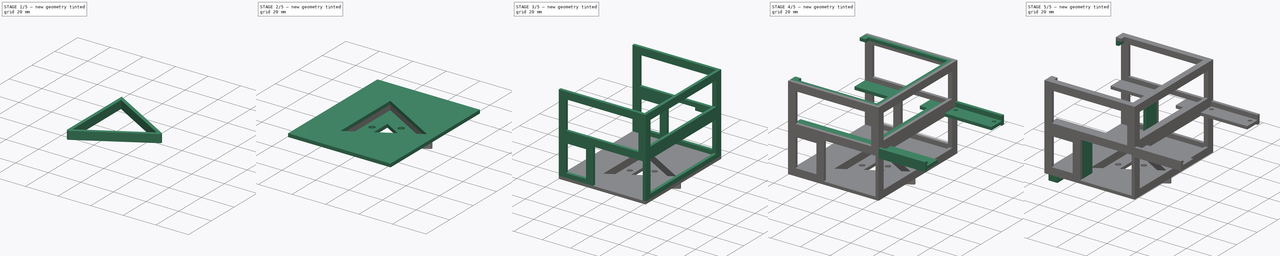
[diagram: build sequence overview — one tinted view per stage of 5, left to right]
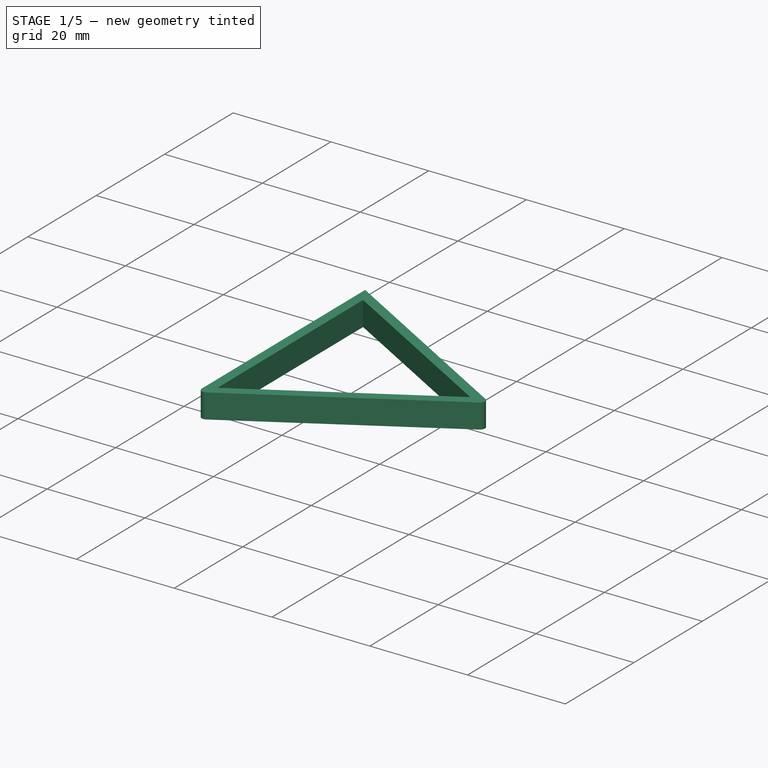
[diagram: stage 1 of 5 — iso view after this stage's code; geometry added in this stage tinted green]
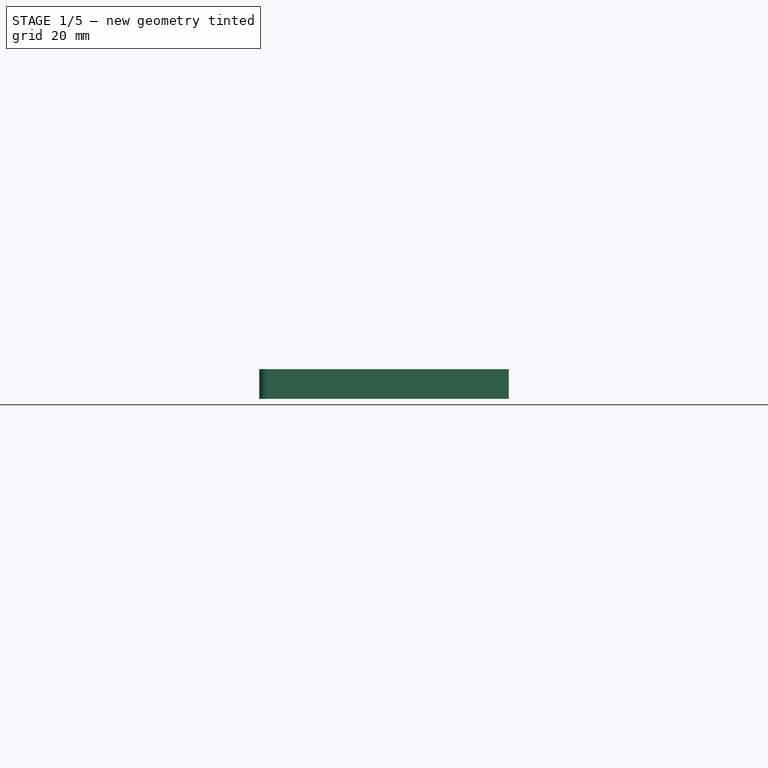
[diagram: stage 1 of 5 — front view after this stage's code; geometry added in this stage tinted green]
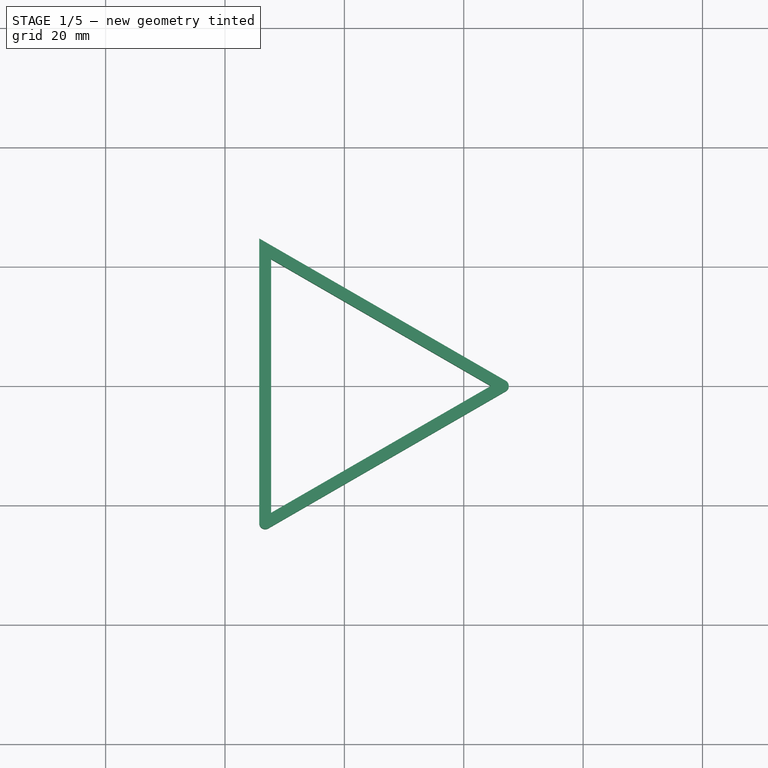
[diagram: stage 1 of 5 — top view after this stage's code; geometry added in this stage tinted green]
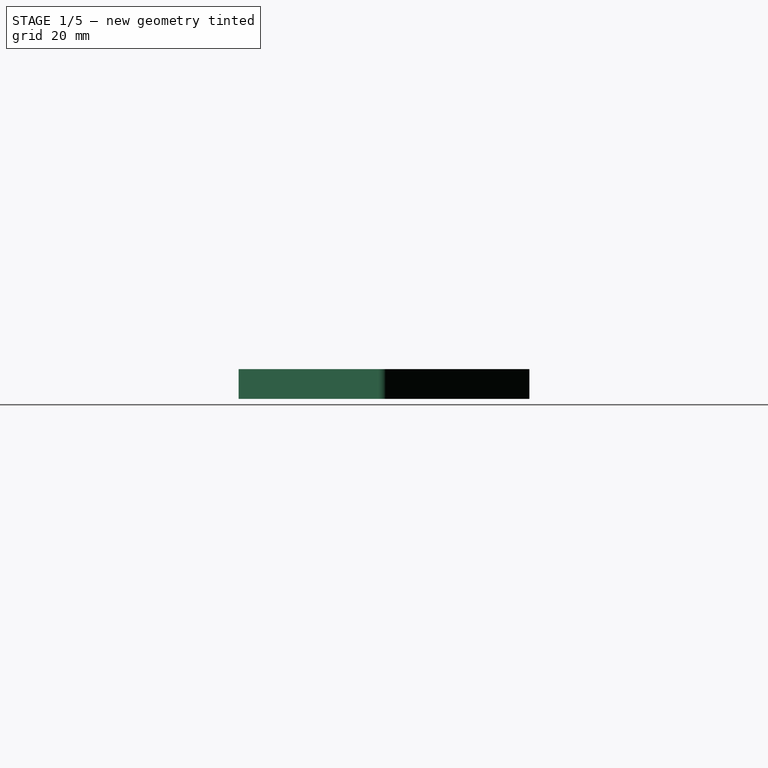
[diagram: stage 1 of 5 — right view after this stage's code; geometry added in this stage tinted green]
FCSTD DOCUMENT  (FreeCAD 0.20R)
Label: core2_9axis
License: All rights reserved
LicenseURL: http://en.wikipedia.org/wiki/All_rights_reserved
objects: Sketcher::SketchObject×13, PartDesign::Pad×10, PartDesign::Fillet×3, PartDesign::Pocket×3, PartDesign::Body×1
note: 46 computed .brp shape members not serialized (recipe doc carries the construction recipe); baked Part::Feature solids carry a one-line shape summary decoded from their .brp

FEATURE [Sketcher::SketchObject] Sketch
  FullyConstrained = true
  MapMode = 5
  Support = -> [XY_Plane]
  sketch-geometry (8):
    g0: LineSegment StartX=24.5374 StartY=0 StartZ=0 EndX=-12.2687 EndY=21.25 EndZ=0
    g1: LineSegment StartX=-12.2687 StartY=21.25 StartZ=0 EndX=-12.2687 EndY=-21.25 EndZ=0
    g2: LineSegment StartX=-12.2687 StartY=-21.25 StartZ=0 EndX=24.5374 EndY=0 EndZ=0
    g3: Circle CenterX=0 CenterY=0 CenterZ=0 NormalX=0 NormalY=0 NormalZ=1 AngleXU=0 Radius=24.5374
    g4: LineSegment StartX=28.5374 StartY=0 StartZ=0 EndX=-14.2687 EndY=24.7141 EndZ=0
    g5: LineSegment StartX=-14.2687 StartY=24.7141 StartZ=0 EndX=-14.2687 EndY=-24.7141 EndZ=0
    g6: LineSegment StartX=-14.2687 StartY=-24.7141 StartZ=0 EndX=28.5374 EndY=0 EndZ=0
    g7: Circle CenterX=0 CenterY=0 CenterZ=0 NormalX=0 NormalY=0 NormalZ=1 AngleXU=0 Radius=28.5374
  constraints (22):
    c: Coincident(g0,g1)
    c: Coincident(g1,g2)
    c: Coincident(g2,g0)
    c: Equal(g0,g1)
    c: Equal(g0,g2)
    c: PointOnObject(g0,g3)
    c: PointOnObject(g1,g3)
    c: PointOnObject(g2,g3)
    c: Coincident(g3,g-1)
    c: PointOnObject(g2,g-1)
    c: Distance(g1) = 42.5
    c: Coincident(g4,g5)
    c: Coincident(g5,g6)
    c: Coincident(g6,g4)
    c: Equal(g4,g5)
    c: Equal(g4,g6)
    c: PointOnObject(g4,g7)
    c: PointOnObject(g5,g7)
    c: PointOnObject(g6,g7)
    c: Coincident(g7,g3)
    c: PointOnObject(g6,g-1)
    c: Distance(g0,g4) = 2
FEATURE [PartDesign::Pad] Pad
  Direction = (0,0,1)
  Length = 5
  Length2 = 10
  Profile = -> Sketch
  ReferenceAxis = -> Sketch [N_Axis]
  Type = 0
FEATURE [PartDesign::Fillet] Fillet
  Base = -> Pad [Edge5]
  BaseFeature = -> Pad
  Radius = 1
  SupportTransform = false
  UseAllEdges = false
FEATURE [PartDesign::Fillet] Fillet001
  Base = -> Fillet [Edge13]
  BaseFeature = -> Fillet
  Radius = 1
  SupportTransform = false
  UseAllEdges = false
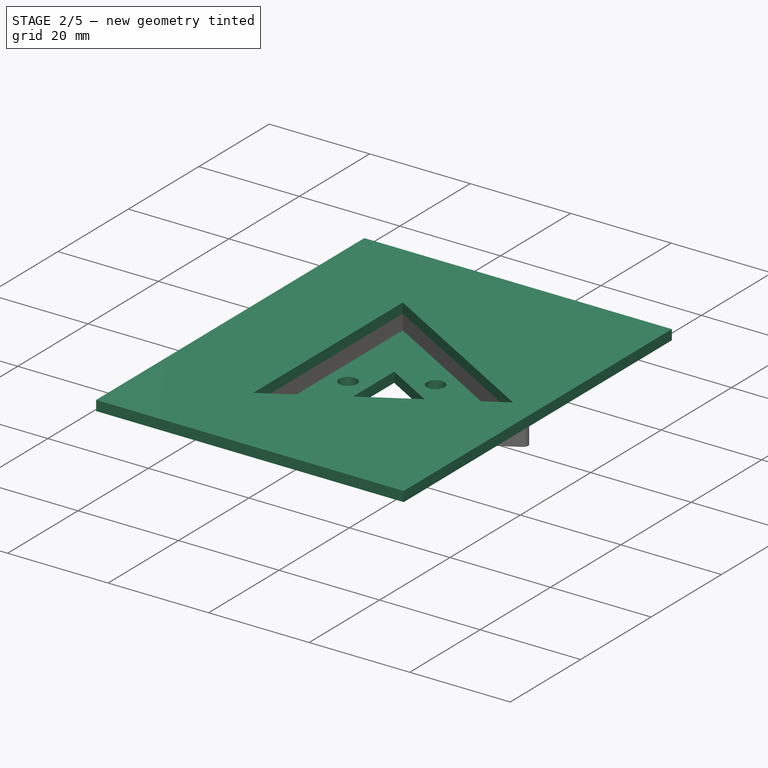
[diagram: stage 2 of 5 — iso view after this stage's code; geometry added in this stage tinted green]
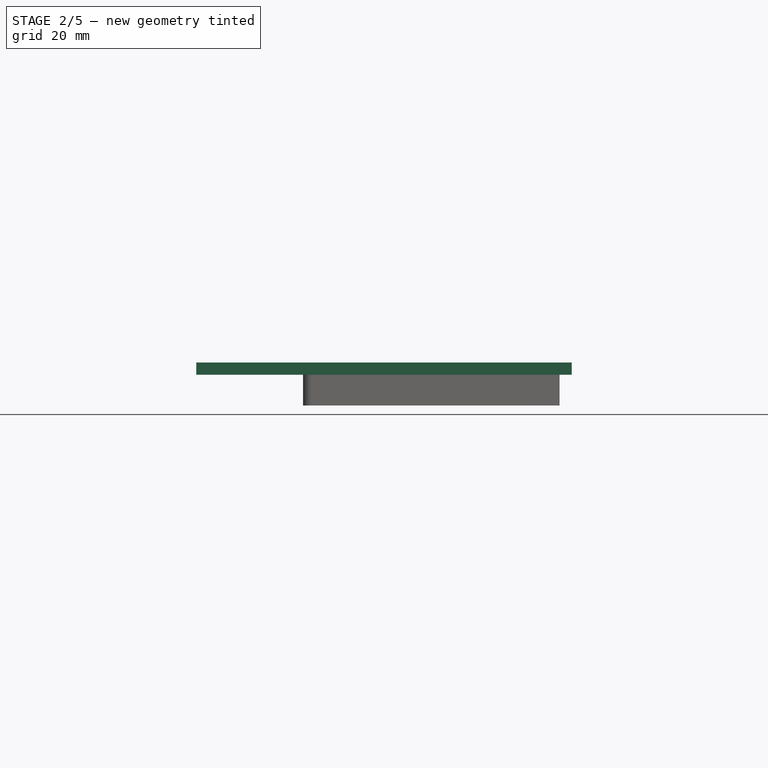
[diagram: stage 2 of 5 — front view after this stage's code; geometry added in this stage tinted green]
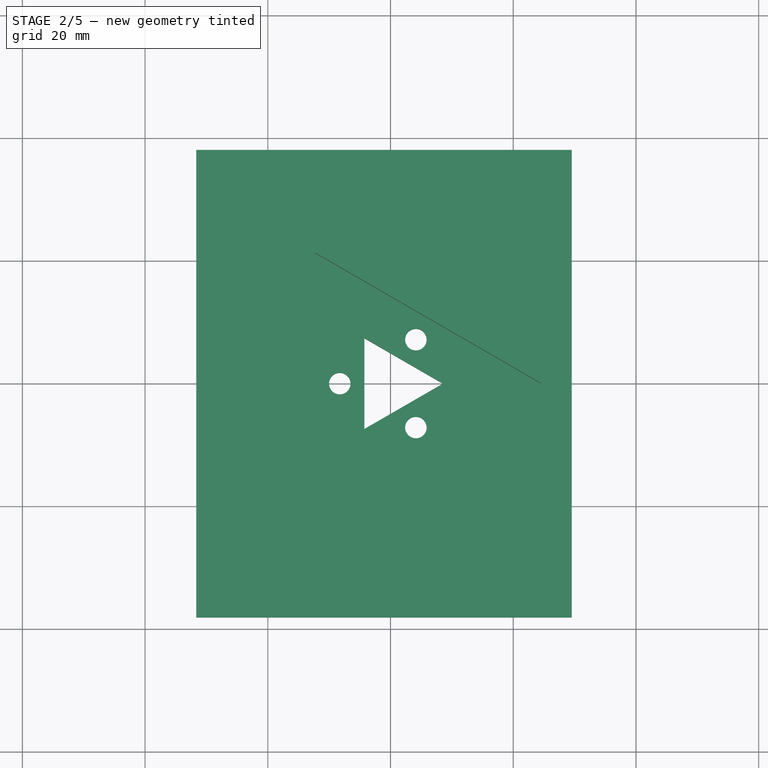
[diagram: stage 2 of 5 — top view after this stage's code; geometry added in this stage tinted green]
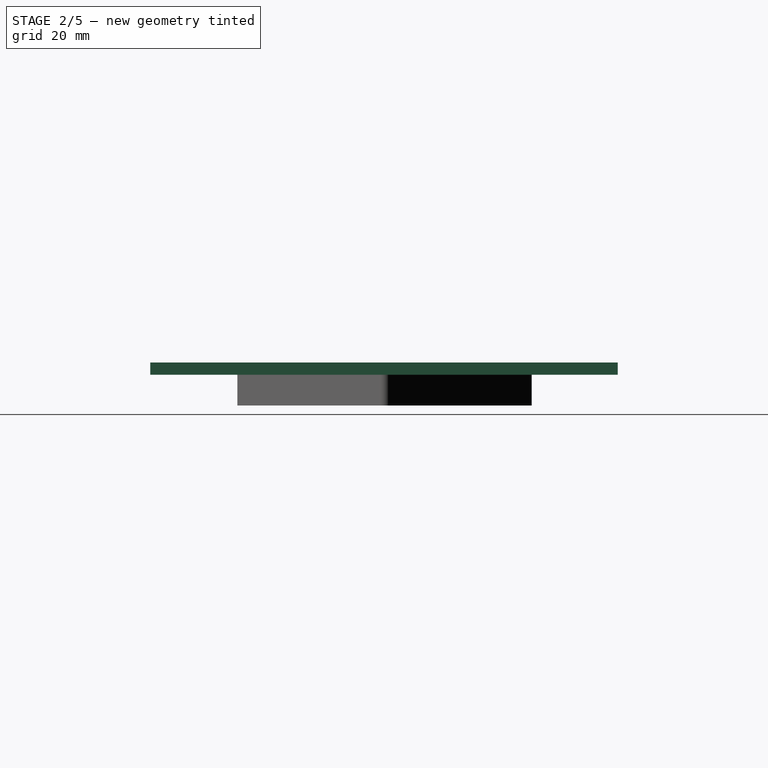
[diagram: stage 2 of 5 — right view after this stage's code; geometry added in this stage tinted green]
FEATURE [PartDesign::Fillet] Fillet002
  Base = -> Fillet001 [Edge10]
  BaseFeature = -> Fillet001
  Radius = 1
  SupportTransform = false
  UseAllEdges = false
FEATURE [Sketcher::SketchObject] Sketch001
  ExternalGeometry = -> [Fillet002]
  FullyConstrained = true
  MapMode = 5
  Placement = pos=(0,0,0) rot=(1,0,0;3.14159rad)
  Support = -> [Fillet002]
  sketch-geometry (15):
    g0: LineSegment StartX=8.53739 StartY=0 StartZ=0 EndX=-4.26869 EndY=7.39359 EndZ=0
    g1: LineSegment StartX=-4.26869 StartY=7.39359 StartZ=0 EndX=-4.26869 EndY=-7.39359 EndZ=0
    g2: LineSegment StartX=-4.26869 StartY=-7.39359 StartZ=0 EndX=8.53739 EndY=0 EndZ=0
    g3: Circle CenterX=0 CenterY=0 CenterZ=0 NormalX=0 NormalY=0 NormalZ=1 AngleXU=0 Radius=8.53739
    g4: LineSegment StartX=-8.26869 StartY=0 StartZ=0 EndX=4.13435 EndY=-7.1609 EndZ=0
    g5: LineSegment StartX=4.13435 StartY=-7.1609 StartZ=0 EndX=4.13435 EndY=7.1609 EndZ=0
    g6: LineSegment StartX=4.13435 StartY=7.1609 StartZ=0 EndX=-8.26869 EndY=0 EndZ=0
    g7: Circle CenterX=0 CenterY=0 CenterZ=0 NormalX=0 NormalY=0 NormalZ=1 AngleXU=0 Radius=8.26869
    g8: Circle CenterX=4.13435 CenterY=7.1609 CenterZ=0 NormalX=0 NormalY=0 NormalZ=1 AngleXU=0 Radius=1.75
    g9: Circle CenterX=4.13435 CenterY=-7.1609 CenterZ=0 NormalX=0 NormalY=0 NormalZ=1 AngleXU=0 Radius=1.75
    g10: Circle CenterX=-8.26869 CenterY=0 CenterZ=0 NormalX=0 NormalY=0 NormalZ=1 AngleXU=0 Radius=1.75
    g11: LineSegment StartX=24.5374 StartY=0 StartZ=0 EndX=-12.2687 EndY=21.25 EndZ=0
    g12: LineSegment StartX=-12.2687 StartY=21.25 StartZ=0 EndX=-12.2687 EndY=-21.25 EndZ=0
    g13: LineSegment StartX=-12.2687 StartY=-21.25 StartZ=0 EndX=24.5374 EndY=0 EndZ=0
    g14: Circle CenterX=0 CenterY=0 CenterZ=0 NormalX=0 NormalY=0 NormalZ=1 AngleXU=0 Radius=24.5374
  constraints (38):
    c: Coincident(g0,g1)
    c: Coincident(g1,g2)
    c: Coincident(g2,g0)
    c: Equal(g0,g1)
    c: Equal(g0,g2)
    c: PointOnObject(g0,g3)
    c: PointOnObject(g1,g3)
    c: PointOnObject(g2,g3)
    c: Coincident(g3,g-1)
    c: PointOnObject(g2,g-1)
    c: Distance(g0,g-3) = 8
    c: Coincident(g4,g5)
    c: Coincident(g5,g6)
    c: Coincident(g6,g4)
    c: Equal(g4,g5)
    c: Equal(g4,g6)
    c: PointOnObject(g4,g7)
    c: PointOnObject(g5,g7)
    c: PointOnObject(g6,g7)
    c: Coincident(g7,g3)
    c: PointOnObject(g6,g-1)
    c: Distance(g5,g-4) = 4
    c: Coincident(g8,g5)
    c: Coincident(g9,g4)
    c: Coincident(g10,g4)
    c: Diameter(g8) = 3.5
    c: Diameter(g9) = 3.5
    c: Diameter(g10) = 3.5
    c: Coincident(g11,g12)
    c: Coincident(g12,g13)
    c: Coincident(g13,g11)
    c: Equal(g11,g12)
    c: Equal(g11,g13)
    c: PointOnObject(g11,g14)
    c: PointOnObject(g12,g14)
    c: PointOnObject(g13,g14)
    c: Coincident(g14,g3)
    c: Coincident(g13,g-5)
FEATURE [PartDesign::Pad] Pad001
  BaseFeature = -> Fillet002
  Direction = (0,0,-1)
  Length = 2
  Length2 = 10
  Profile = -> Sketch001
  ReferenceAxis = -> Sketch001 [N_Axis]
  Reversed = true
  Type = 0
FEATURE [Sketcher::SketchObject] Sketch002
  ExternalGeometry = -> [Pad001]
  FullyConstrained = true
  MapMode = 5
  Placement = pos=(0,0,5) rot=(0,0,1;0rad)
  Support = -> [Pad001]
  sketch-geometry (8):
    g0: LineSegment StartX=-12.2687 StartY=21.25 StartZ=0 EndX=-12.2687 EndY=-21.25 EndZ=0
    g1: LineSegment StartX=-12.2687 StartY=-21.25 StartZ=0 EndX=24.5374 EndY=-1.4531e-12 EndZ=0
    g2: LineSegment StartX=24.5374 StartY=-1.4531e-12 StartZ=0 EndX=-12.2687 EndY=21.25 EndZ=0
    g3: Circle CenterX=0 CenterY=0 CenterZ=0 NormalX=0 NormalY=0 NormalZ=1 AngleXU=0 Radius=24.5374
    g4: LineSegment StartX=-31.6626 StartY=38.01 StartZ=0 EndX=29.5374 EndY=38.01 EndZ=0
    g5: LineSegment StartX=29.5374 StartY=38.01 StartZ=0 EndX=29.5374 EndY=-38.19 EndZ=0
    g6: LineSegment StartX=29.5374 StartY=-38.19 StartZ=0 EndX=-31.6626 EndY=-38.19 EndZ=0
    g7: LineSegment StartX=-31.6626 StartY=-38.19 StartZ=0 EndX=-31.6626 EndY=38.01 EndZ=0
  constraints (22):
    c: Coincident(g0,g1)
    c: Coincident(g1,g2)
    c: Coincident(g2,g0)
    c: Equal(g0,g1)
    c: Equal(g0,g2)
    c: PointOnObject(g0,g3)
    c: PointOnObject(g1,g3)
    c: PointOnObject(g2,g3)
    c: Coincident(g3,g-1)
    c: Coincident(g2,g-3)
    c: Coincident(g4,g5)
    c: Coincident(g5,g6)
    c: Coincident(g6,g7)
    c: Coincident(g7,g4)
    c: Horizontal(g4)
    c: Horizontal(g6)
    c: Vertical(g5)
    c: Vertical(g7)
    c: Distance(g4) = 61.2
    c: Distance(g7) = 76.2
    c: Distance(g4,g-1) = 38.01
    c: Distance(g1,g5) = 5
FEATURE [PartDesign::Pad] Pad002
  BaseFeature = -> Pad001
  Direction = (0,0,1)
  Length = 2
  Length2 = 10
  Profile = -> Sketch002
  ReferenceAxis = -> Sketch002 [N_Axis]
  Type = 0
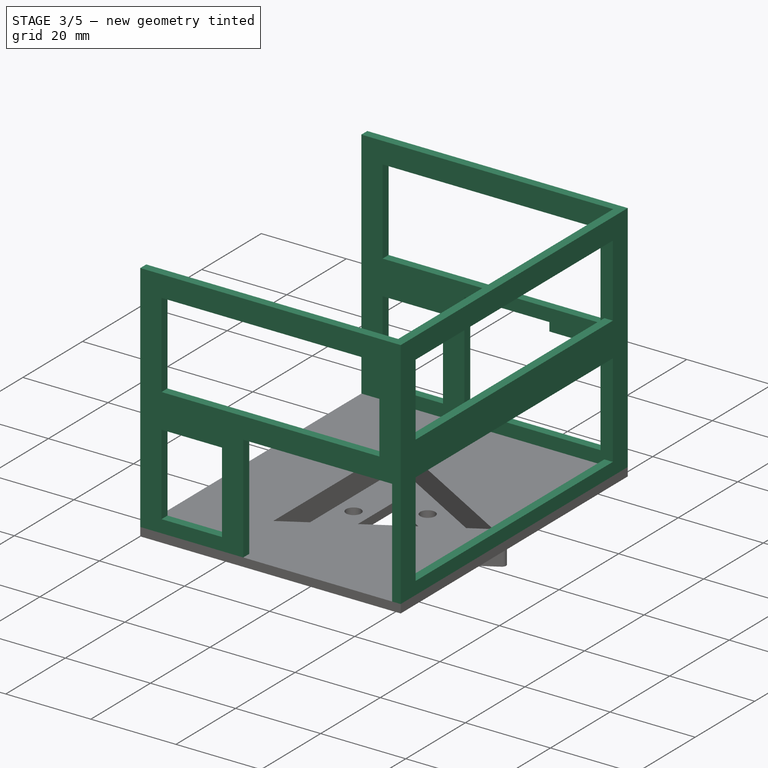
[diagram: stage 3 of 5 — iso view after this stage's code; geometry added in this stage tinted green]
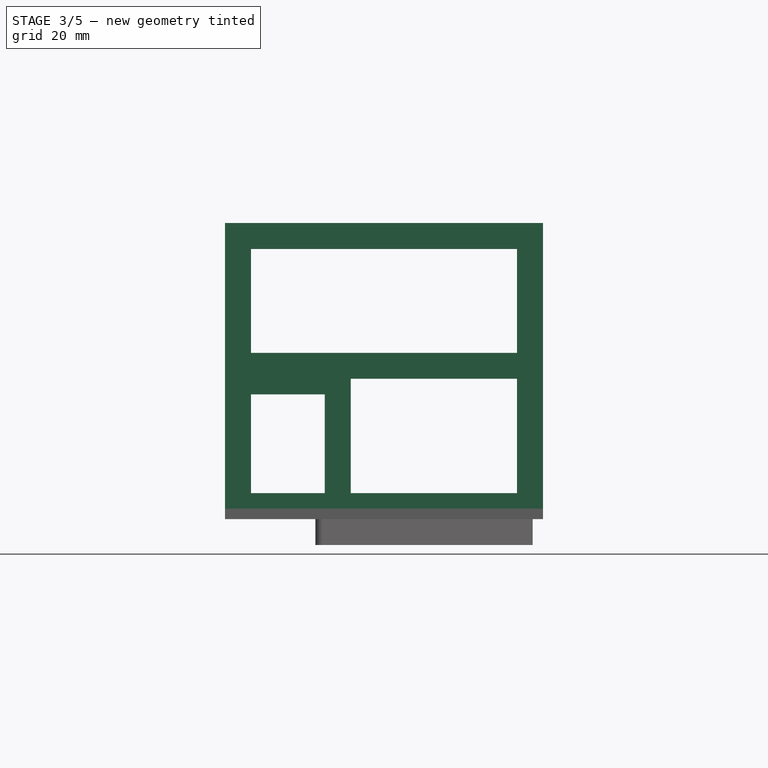
[diagram: stage 3 of 5 — front view after this stage's code; geometry added in this stage tinted green]
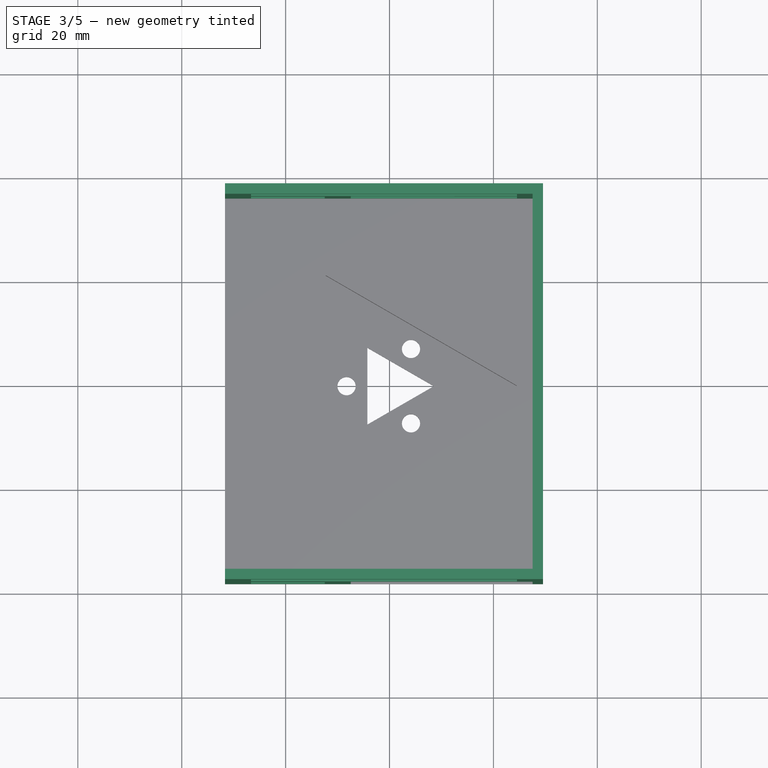
[diagram: stage 3 of 5 — top view after this stage's code; geometry added in this stage tinted green]
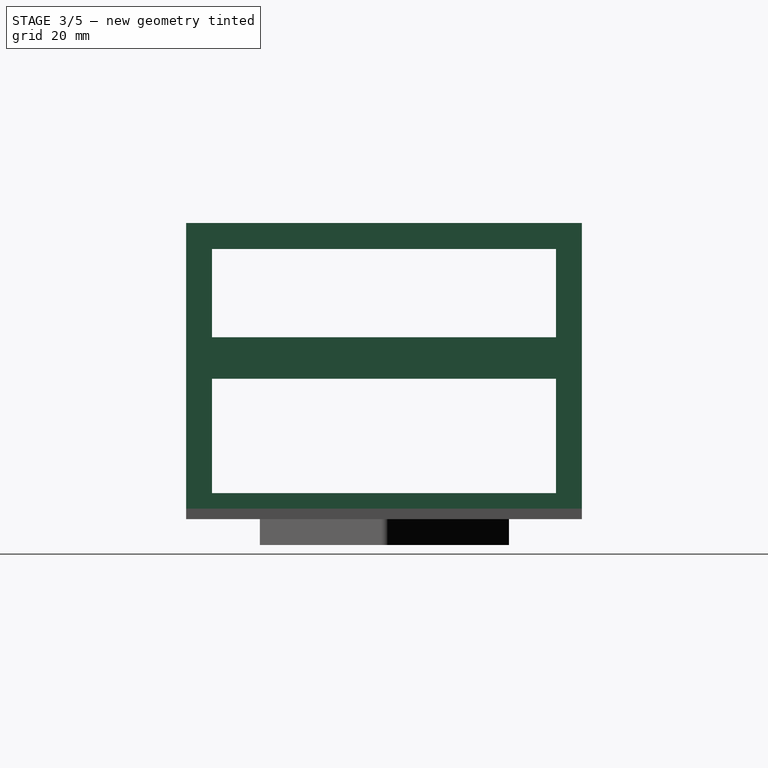
[diagram: stage 3 of 5 — right view after this stage's code; geometry added in this stage tinted green]
FEATURE [Sketcher::SketchObject] Sketch003
  ExternalGeometry = -> [Pad002]
  FullyConstrained = true
  MapMode = 5
  Placement = pos=(0,0,7) rot=(0,0,1;0rad)
  Support = -> [Pad002]
  sketch-geometry (8):
    g0: LineSegment StartX=-31.6626 StartY=38.01 StartZ=0 EndX=29.5374 EndY=38.01 EndZ=0
    g1: LineSegment StartX=29.5374 StartY=38.01 StartZ=0 EndX=29.5374 EndY=-38.19 EndZ=0
    g2: LineSegment StartX=29.5374 StartY=-38.19 StartZ=0 EndX=-31.6626 EndY=-38.19 EndZ=0
    g3: LineSegment StartX=-31.6626 StartY=-38.19 StartZ=0 EndX=-31.6626 EndY=-36.19 EndZ=0
    g4: LineSegment StartX=-31.6626 StartY=36.01 StartZ=0 EndX=27.5374 EndY=36.01 EndZ=0
    g5: LineSegment StartX=27.5374 StartY=36.01 StartZ=0 EndX=27.5374 EndY=-36.19 EndZ=0
    g6: LineSegment StartX=27.5374 StartY=-36.19 StartZ=0 EndX=-31.6626 EndY=-36.19 EndZ=0
    g7: LineSegment StartX=-31.6626 StartY=36.01 StartZ=0 EndX=-31.6626 EndY=38.01 EndZ=0
  constraints (23):
    c: Coincident(g0,g1)
    c: Coincident(g1,g2)
    c: Coincident(g2,g3)
    c: Coincident(g7,g0)
    c: Horizontal(g0)
    c: Horizontal(g2)
    c: Vertical(g1)
    c: Vertical(g3)
    c: Coincident(g0,g-3)
    c: Coincident(g1,g-4)
    c: Coincident(g4,g5)
    c: Coincident(g5,g6)
    c: Horizontal(g4)
    c: Horizontal(g6)
    c: Vertical(g5)
    c: Distance(g4,g0) = 2
    c: Distance(g4,g1) = 2
    c: Distance(g5,g2) = 2
    c: PointOnObject(g3,g6)
    c: Coincident(g7,g4)
    c: Perpendicular(g7,g0)
    c: Equal(g0,g2)
    c: Equal(g4,g6)
FEATURE [PartDesign::Pad] Pad003
  BaseFeature = -> Pad002
  Direction = (0,0,1)
  Length = 55
  Length2 = 10
  Profile = -> Sketch003
  ReferenceAxis = -> Sketch003 [N_Axis]
  Type = 0
FEATURE [Sketcher::SketchObject] Sketch004
  ExternalGeometry = -> [Pad003]
  FullyConstrained = true
  MapMode = 5
  Placement = pos=(0,-38.19,0) rot=(1,0,0;1.5708rad)
  Support = -> [Pad003]
  sketch-geometry (12):
    g0: LineSegment StartX=-7.46261 StartY=7 StartZ=0 EndX=27.5374 EndY=7 EndZ=0
    g1: LineSegment StartX=27.5374 StartY=7 StartZ=0 EndX=27.5374 EndY=32 EndZ=0
    g2: LineSegment StartX=27.5374 StartY=32 StartZ=0 EndX=-7.46261 EndY=32 EndZ=0
    g3: LineSegment StartX=-7.46261 StartY=32 StartZ=0 EndX=-7.46261 EndY=7 EndZ=0
    g4: LineSegment StartX=-26.6626 StartY=29 StartZ=0 EndX=-12.4626 EndY=29 EndZ=0
    g5: LineSegment StartX=-12.4626 StartY=29 StartZ=0 EndX=-12.4626 EndY=10 EndZ=0
    g6: LineSegment StartX=-12.4626 StartY=10 StartZ=0 EndX=-26.6626 EndY=10 EndZ=0
    g7: LineSegment StartX=-26.6626 StartY=10 StartZ=0 EndX=-26.6626 EndY=29 EndZ=0
    g8: LineSegment StartX=-26.6626 StartY=57 StartZ=0 EndX=24.5374 EndY=57 EndZ=0
    g9: LineSegment StartX=24.5374 StartY=57 StartZ=0 EndX=24.5374 EndY=37 EndZ=0
    g10: LineSegment StartX=24.5374 StartY=37 StartZ=0 EndX=-26.6626 EndY=37 EndZ=0
    g11: LineSegment StartX=-26.6626 StartY=37 StartZ=0 EndX=-26.6626 EndY=57 EndZ=0
  constraints (36):
    c: Coincident(g0,g1)
    c: Coincident(g1,g2)
    c: Coincident(g2,g3)
    c: Coincident(g3,g0)
    c: Horizontal(g0)
    c: Horizontal(g2)
    c: Vertical(g1)
    c: Vertical(g3)
    c: PointOnObject(g0,g-5)
    c: Distance(g1,g-3) = 2
    c: Distance(g1) = 25
    c: Distance(g2) = 35
    c: Coincident(g4,g5)
    c: Coincident(g5,g6)
    c: Coincident(g6,g7)
    c: Coincident(g7,g4)
    c: Horizontal(g4)
    c: Horizontal(g6)
    c: Vertical(g5)
    c: Vertical(g7)
    c: Distance(g4,g3) = 5
    c: Distance(g-5,g7) = 5
    c: Distance(g5,g-5) = 3
    c: Distance(g4,g2) = 3
    c: Coincident(g8,g9)
    c: Coincident(g9,g10)
    c: Coincident(g10,g11)
    c: Coincident(g11,g8)
    c: Horizontal(g8)
    c: Horizontal(g10)
    c: Vertical(g9)
    c: Vertical(g11)
    c: Distance(g8,g-4) = 5
    c: Distance(g8,g-3) = 5
    c: Distance(g9,g2) = 5
    c: Distance(g-4,g11) = 5
FEATURE [PartDesign::Pocket] Pocket
  BaseFeature = -> Pad003
  Direction = (0,1,-2e-16)
  Length = 2
  Length2 = 5
  Profile = -> Sketch004
  ReferenceAxis = -> Sketch004 [N_Axis]
  Type = 0
FEATURE [Sketcher::SketchObject] Sketch005
  ExternalGeometry = -> [Pocket]
  FullyConstrained = false
  MapMode = 5
  Placement = pos=(0,38.01,0) rot=(0,0.707107,0.707107;3.14159rad)
  Support = -> [Pocket]
  sketch-geometry (15):
    g0: LineSegment StartX=-24.5374 StartY=32 StartZ=0 EndX=-12.5374 EndY=32 EndZ=0
    g1: LineSegment StartX=7.46261 StartY=32 StartZ=0 EndX=7.46261 EndY=10 EndZ=0
    g2: LineSegment StartX=7.46261 StartY=10 StartZ=0 EndX=-24.5374 EndY=10 EndZ=0
    g3: LineSegment StartX=-24.5374 StartY=10 StartZ=0 EndX=-24.5374 EndY=32 EndZ=0
    g4: LineSegment StartX=-12.5374 StartY=32 StartZ=0 EndX=-12.5374 EndY=34 EndZ=0
    g5: LineSegment StartX=-12.5374 StartY=34 StartZ=0 EndX=7.46261 EndY=34 EndZ=0
    g6: LineSegment StartX=7.46261 StartY=34 StartZ=0 EndX=7.46261 EndY=32 EndZ=0
    g7: LineSegment StartX=12.4626 StartY=29 StartZ=0 EndX=26.6626 EndY=29 EndZ=0
    g8: LineSegment StartX=26.6626 StartY=29 StartZ=0 EndX=26.6626 EndY=10 EndZ=0
    g9: LineSegment StartX=26.6626 StartY=10 StartZ=0 EndX=12.4626 EndY=10 EndZ=0
    g10: LineSegment StartX=12.4626 StartY=10 StartZ=0 EndX=12.4626 EndY=29 EndZ=0
    g11: LineSegment StartX=-24.5374 StartY=57 StartZ=0 EndX=26.6626 EndY=57 EndZ=0
    g12: LineSegment StartX=26.6626 StartY=57 StartZ=0 EndX=26.6626 EndY=37 EndZ=0
    g13: LineSegment StartX=26.6626 StartY=37 StartZ=0 EndX=-24.5374 EndY=37 EndZ=0
    g14: LineSegment StartX=-24.5374 StartY=37 StartZ=0 EndX=-24.5374 EndY=57 EndZ=0
  constraints (44):
    c: Coincident(g1,g2)
    c: Coincident(g2,g3)
    c: Coincident(g3,g0)
    c: Horizontal(g0)
    c: Horizontal(g2)
    c: Vertical(g1)
    c: Vertical(g3)
    c: Distance(g0,g-3) = 5
    c: Distance(g2,g-4) = 3
    c: Distance(g2) = 32
    c: Distance(g1) = 22
    c: Coincident(g4,g5)
    c: Coincident(g5,g6)
    c: Horizontal(g5)
    c: Vertical(g4)
    c: Vertical(g6)
    c: Distance(g6) = 2
    c: Distance(g5) = 20
    c: Equal(g1,g3)
    c: Distance(g0) = 12
    c: Coincident(g7,g8)
    c: Coincident(g8,g9)
    c: Coincident(g9,g10)
    c: Coincident(g10,g7)
    c: Horizontal(g7)
    c: Horizontal(g9)
    c: Vertical(g8)
    c: Vertical(g10)
    c: Distance(g1,g10) = 5
    c: Distance(g8,g-6) = 5
    c: Distance(g8,g-4) = 3
    c: Distance(g8) = 19
    c: Coincident(g11,g12)
    c: Coincident(g12,g13)
    c: Coincident(g13,g14)
    c: Coincident(g14,g11)
    c: Horizontal(g11)
    c: Horizontal(g13)
    c: Vertical(g12)
    c: Vertical(g14)
    c: Distance(g11,g-3) = 5
    c: Distance(g11,g-5) = 5
    c: Distance(g13,g0) = 5
    c: Distance(g11,g-6) = 5
FEATURE [PartDesign::Pocket] Pocket001
  BaseFeature = -> Pocket
  Direction = (0,-1,2e-16)
  Length = 2
  Length2 = 5
  Profile = -> Sketch005
  ReferenceAxis = -> Sketch005 [N_Axis]
  Type = 0
FEATURE [Sketcher::SketchObject] Sketch006
  ExternalGeometry = -> [Pocket001]
  FullyConstrained = true
  MapMode = 5
  Placement = pos=(29.5374,0,0) rot=(0.57735,0.57735,0.57735;2.0944rad)
  Support = -> [Pocket001]
  sketch-geometry (8):
    g0: LineSegment StartX=-33.19 StartY=32 StartZ=0 EndX=33.01 EndY=32 EndZ=0
    g1: LineSegment StartX=33.01 StartY=32 StartZ=0 EndX=33.01 EndY=10 EndZ=0
    g2: LineSegment StartX=33.01 StartY=10 StartZ=0 EndX=-33.19 EndY=10 EndZ=0
    g3: LineSegment StartX=-33.19 StartY=10 StartZ=0 EndX=-33.19 EndY=32 EndZ=0
    g4: LineSegment StartX=-33.19 StartY=57 StartZ=0 EndX=33.01 EndY=57 EndZ=0
    g5: LineSegment StartX=33.01 StartY=57 StartZ=0 EndX=33.01 EndY=40 EndZ=0
    g6: LineSegment StartX=33.01 StartY=40 StartZ=0 EndX=-33.19 EndY=40 EndZ=0
    g7: LineSegment StartX=-33.19 StartY=40 StartZ=0 EndX=-33.19 EndY=57 EndZ=0
  constraints (24):
    c: Coincident(g0,g1)
    c: Coincident(g1,g2)
    c: Coincident(g2,g3)
    c: Coincident(g3,g0)
    c: Horizontal(g0)
    c: Horizontal(g2)
    c: Vertical(g1)
    c: Vertical(g3)
    c: Distance(g2,g-3) = 5
    c: Distance(g1,g-5) = 5
    c: Distance(g1,g-6) = 3
    c: Distance(g3) = 22
    c: Coincident(g4,g5)
    c: Coincident(g5,g6)
    c: Coincident(g6,g7)
    c: Coincident(g7,g4)
    c: Horizontal(g4)
    c: Horizontal(g6)
    c: Vertical(g5)
    c: Vertical(g7)
    c: Distance(g4,g-4) = 5
    c: Distance(g6,g-3) = 5
    c: Distance(g5,g-5) = 5
    c: Distance(g5,g0) = 8
FEATURE [PartDesign::Pocket] Pocket002
  BaseFeature = -> Pocket001
  Direction = (-1,0,0)
  Length = 2
  Length2 = 5
  Profile = -> Sketch006
  ReferenceAxis = -> Sketch006 [N_Axis]
  Type = 0
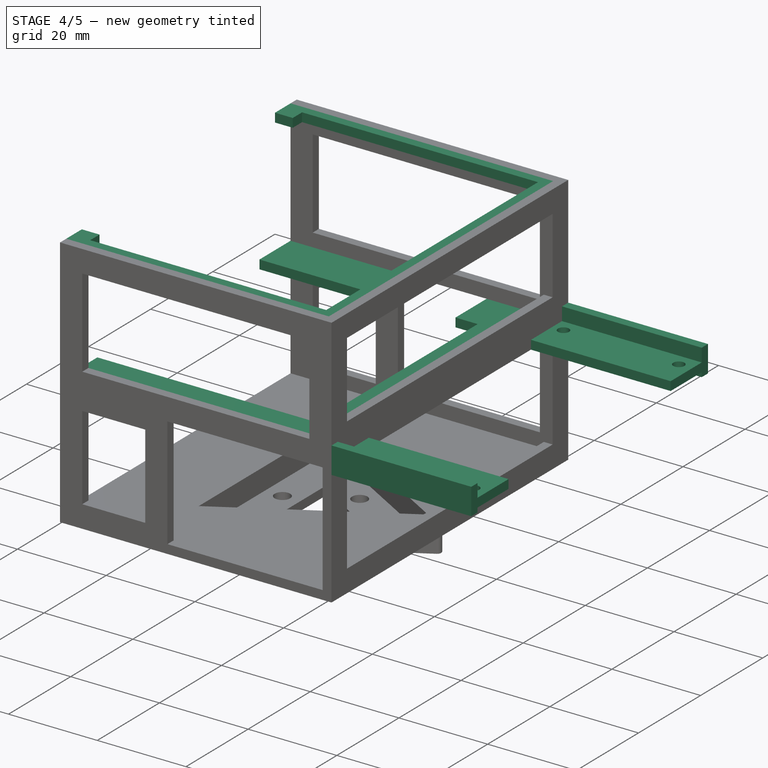
[diagram: stage 4 of 5 — iso view after this stage's code; geometry added in this stage tinted green]
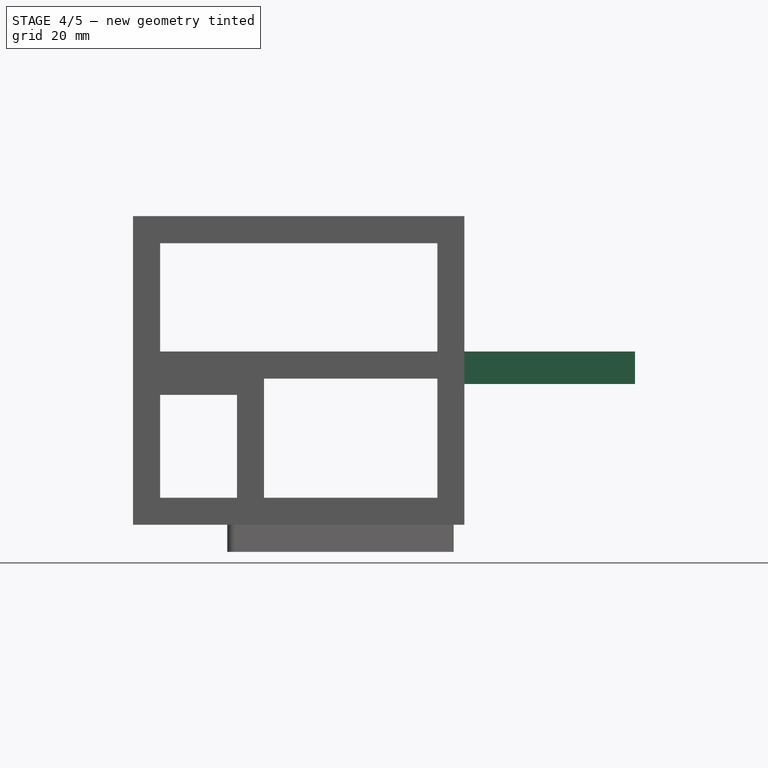
[diagram: stage 4 of 5 — front view after this stage's code; geometry added in this stage tinted green]
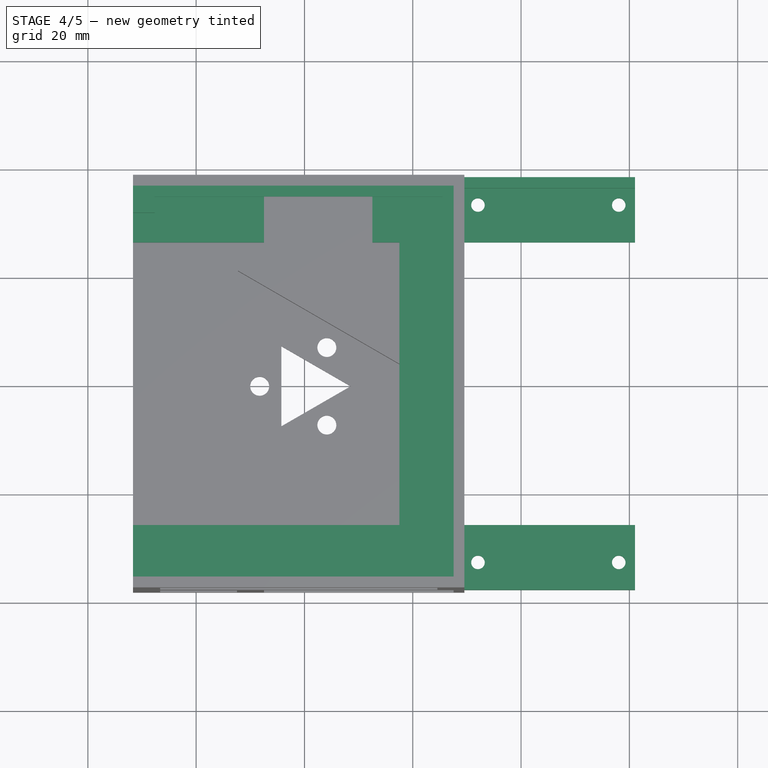
[diagram: stage 4 of 5 — top view after this stage's code; geometry added in this stage tinted green]
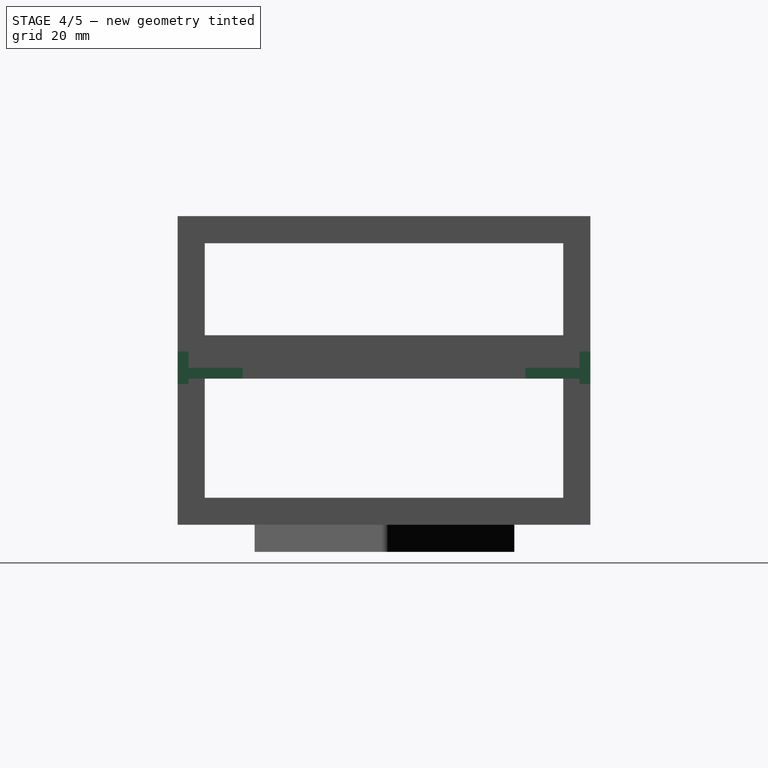
[diagram: stage 4 of 5 — right view after this stage's code; geometry added in this stage tinted green]
FEATURE [Sketcher::SketchObject] Sketch007
  ExternalGeometry = -> [Pocket002]
  FullyConstrained = false
  MapMode = 5
  Placement = pos=(0,7e-15,32) rot=(1,0,0;3.14159rad)
  Support = -> [Pocket002]
  sketch-geometry (28):
    g0: LineSegment StartX=-31.6626 StartY=36.19 StartZ=0 EndX=27.5374 EndY=36.19 EndZ=0
    g1: LineSegment StartX=27.5374 StartY=36.19 StartZ=0 EndX=27.5374 EndY=-36.01 EndZ=0
    g2: LineSegment StartX=27.5374 StartY=-36.01 StartZ=0 EndX=12.5374 EndY=-36.01 EndZ=0
    g3: LineSegment StartX=-31.6626 StartY=-36.01 StartZ=0 EndX=-31.6626 EndY=-26.01 EndZ=0
    g4: LineSegment StartX=-31.6626 StartY=26.19 StartZ=0 EndX=17.5374 EndY=26.19 EndZ=0
    g5: LineSegment StartX=17.5374 StartY=26.19 StartZ=0 EndX=17.5374 EndY=-26.01 EndZ=0
    g6: LineSegment StartX=17.5374 StartY=-26.01 StartZ=0 EndX=12.5374 EndY=-26.01 EndZ=0
    g7: LineSegment StartX=-31.6626 StartY=26.19 StartZ=0 EndX=-31.6626 EndY=36.19 EndZ=0
    g8: LineSegment StartX=-7.46261 StartY=-36.01 StartZ=0 EndX=-7.46261 EndY=-26.01 EndZ=0
    g9: LineSegment StartX=12.5374 StartY=-36.01 StartZ=0 EndX=12.5374 EndY=-26.01 EndZ=0
    g10: LineSegment StartX=-7.46261 StartY=-26.01 StartZ=0 EndX=-31.6626 EndY=-26.01 EndZ=0
    g11: LineSegment StartX=-7.46261 StartY=-36.01 StartZ=0 EndX=-31.6626 EndY=-36.01 EndZ=0
    g12: LineSegment StartX=29.5374 StartY=-38.01 StartZ=0 EndX=61.0374 EndY=-38.01 EndZ=0
    g13: LineSegment StartX=61.0374 StartY=-38.01 StartZ=0 EndX=61.0374 EndY=-26.01 EndZ=0
    g14: LineSegment StartX=61.0374 StartY=-26.01 StartZ=0 EndX=29.5374 EndY=-26.01 EndZ=0
    g15: LineSegment StartX=29.5374 StartY=-26.01 StartZ=0 EndX=29.5374 EndY=-38.01 EndZ=0
    g16: LineSegment StartX=29.5374 StartY=38.19 StartZ=0 EndX=61.0374 EndY=38.19 EndZ=0
    g17: LineSegment StartX=61.0374 StartY=38.19 StartZ=0 EndX=61.0374 EndY=26.19 EndZ=0
    g18: LineSegment StartX=61.0374 StartY=26.19 StartZ=0 EndX=29.5374 EndY=26.19 EndZ=0
    g19: LineSegment StartX=29.5374 StartY=26.19 StartZ=0 EndX=29.5374 EndY=38.19 EndZ=0
    g20: LineSegment StartX=32.0374 StartY=33.09 StartZ=0 EndX=58.0374 EndY=33.09 EndZ=0
    g21: LineSegment StartX=58.0374 StartY=33.09 StartZ=0 EndX=58.0374 EndY=-32.91 EndZ=0
    g22: LineSegment StartX=58.0374 StartY=-32.91 StartZ=0 EndX=32.0374 EndY=-32.91 EndZ=0
    g23: LineSegment StartX=32.0374 StartY=-32.91 StartZ=0 EndX=32.0374 EndY=33.09 EndZ=0
    g24: Circle CenterX=32.0374 CenterY=33.09 CenterZ=0 NormalX=0 NormalY=0 NormalZ=1 AngleXU=0 Radius=1.25
    g25: Circle CenterX=58.0374 CenterY=33.09 CenterZ=0 NormalX=0 NormalY=0 NormalZ=1 AngleXU=0 Radius=1.25
    g26: Circle CenterX=58.0374 CenterY=-32.91 CenterZ=0 NormalX=0 NormalY=0 NormalZ=1 AngleXU=0 Radius=1.25
    g27: Circle CenterX=32.0374 CenterY=-32.91 CenterZ=0 NormalX=0 NormalY=0 NormalZ=1 AngleXU=0 Radius=1.25
  constraints (70):
    c: Coincident(g0,g1)
    c: Coincident(g1,g2)
    c: Coincident(g11,g3)
    c: Coincident(g7,g0)
    c: Horizontal(g0)
    c: Horizontal(g2)
    c: Vertical(g1)
    c: Vertical(g3)
    c: Coincident(g0,g-3)
    c: Coincident(g1,g-5)
    c: Coincident(g4,g5)
    c: Coincident(g5,g6)
    c: Horizontal(g4)
    c: Horizontal(g6)
    c: Vertical(g5)
    c: Distance(g4,g0) = 10
    c: Distance(g10,g2) = 10
    c: Distance(g4,g1) = 10
    c: PointOnObject(g3,g6)
    c: Coincident(g7,g4)
    c: Coincident(g8,g-6)
    c: Vertical(g8)
    c: Coincident(g9,g-7)
    c: Vertical(g9)
    c: Coincident(g6,g9)
    c: Coincident(g10,g8)
    c: PointOnObject(g2,g9)
    c: PointOnObject(g11,g8)
    c: Coincident(g12,g13)
    c: Coincident(g13,g14)
    c: Coincident(g14,g15)
    c: Coincident(g15,g12)
    c: Horizontal(g12)
    c: Horizontal(g14)
    c: Vertical(g13)
    c: Vertical(g15)
    c: Coincident(g12,g-8)
    c: Coincident(g16,g17)
    c: Coincident(g17,g18)
    c: Coincident(g18,g19)
    c: Coincident(g19,g16)
    c: Horizontal(g16)
    c: Horizontal(g18)
    c: Vertical(g17)
    c: Vertical(g19)
    c: Coincident(g16,g-8)
    c: Distance(g17) = 12
    c: Distance(g16) = 31.5
    c: Equal(g16,g12)
    c: Equal(g17,g13)
    c: Coincident(g20,g21)
    c: Coincident(g21,g22)
    c: Coincident(g22,g23)
    c: Coincident(g23,g20)
    c: Horizontal(g20)
    c: Horizontal(g22)
    c: Vertical(g21)
    c: Vertical(g23)
    c: Distance(g23) = 66
    c: Distance(g20) = 26
    c: Distance(g20,g19) = 2.5
    c: Distance(g20,g16) = 5.1
    c: Coincident(g24,g20)
    c: Coincident(g25,g20)
    c: Coincident(g26,g21)
    c: Coincident(g27,g22)
    c: Diameter(g27) = 2.5
    c: Diameter(g26) = 2.5
    c: Diameter(g25) = 2.5
    c: Diameter(g24) = 2.5
FEATURE [PartDesign::Pad] Pad004
  BaseFeature = -> Pocket002
  Direction = (0,-2e-16,-1)
  Length = 2
  Length2 = 10
  Profile = -> Sketch007
  ReferenceAxis = -> Sketch007 [N_Axis]
  Reversed = true
  Type = 0
FEATURE [Sketcher::SketchObject] Sketch008
  ExternalGeometry = -> [Pad004]
  FullyConstrained = true
  MapMode = 5
  Placement = pos=(0,7.5e-15,34) rot=(0,0,1;0rad)
  Support = -> [Pad004]
  sketch-geometry (8):
    g0: LineSegment StartX=29.5374 StartY=38.01 StartZ=0 EndX=61.0374 EndY=38.01 EndZ=0
    g1: LineSegment StartX=61.0374 StartY=38.01 StartZ=0 EndX=61.0374 EndY=36.01 EndZ=0
    g2: LineSegment StartX=61.0374 StartY=36.01 StartZ=0 EndX=29.5374 EndY=36.01 EndZ=0
    g3: LineSegment StartX=29.5374 StartY=36.01 StartZ=0 EndX=29.5374 EndY=38.01 EndZ=0
    g4: LineSegment StartX=29.5374 StartY=-38.19 StartZ=0 EndX=61.0374 EndY=-38.19 EndZ=0
    g5: LineSegment StartX=61.0374 StartY=-38.19 StartZ=0 EndX=61.0374 EndY=-36.19 EndZ=0
    g6: LineSegment StartX=61.0374 StartY=-36.19 StartZ=0 EndX=29.5374 EndY=-36.19 EndZ=0
    g7: LineSegment StartX=29.5374 StartY=-36.19 StartZ=0 EndX=29.5374 EndY=-38.19 EndZ=0
  constraints (22):
    c: Coincident(g0,g1)
    c: Coincident(g1,g2)
    c: Coincident(g2,g3)
    c: Coincident(g3,g0)
    c: Horizontal(g0)
    c: Horizontal(g2)
    c: Vertical(g1)
    c: Vertical(g3)
    c: Coincident(g0,g-3)
    c: PointOnObject(g1,g-4)
    c: Distance(g1) = 2
    c: Coincident(g4,g5)
    c: Coincident(g5,g6)
    c: Coincident(g6,g7)
    c: Coincident(g7,g4)
    c: Horizontal(g4)
    c: Horizontal(g6)
    c: Vertical(g5)
    c: Vertical(g7)
    c: Coincident(g4,g-5)
    c: PointOnObject(g5,g-6)
    c: Distance(g5) = 2
FEATURE [PartDesign::Pad] Pad005
  BaseFeature = -> Pad004
  Direction = (0,2e-16,1)
  Length = 6
  Length2 = 10
  Midplane = true
  Profile = -> Sketch008
  ReferenceAxis = -> Sketch008 [N_Axis]
  Type = 0
FEATURE [Sketcher::SketchObject] Sketch009
  ExternalGeometry = -> [Pad005]
  FullyConstrained = false
  MapMode = 5
  Placement = pos=(0,0,62) rot=(0,0,1;0rad)
  Support = -> [Pad005]
  sketch-geometry (14):
    g0: LineSegment StartX=-31.6626 StartY=36.01 StartZ=0 EndX=27.5374 EndY=36.01 EndZ=0
    g1: LineSegment StartX=27.5374 StartY=36.01 StartZ=0 EndX=27.5374 EndY=-36.19 EndZ=0
    g2: LineSegment StartX=27.5374 StartY=-36.19 StartZ=0 EndX=-31.6626 EndY=-36.19 EndZ=0
    g3: LineSegment StartX=-31.6626 StartY=-36.19 StartZ=0 EndX=-31.6626 EndY=-34.19 EndZ=0
    g4: LineSegment StartX=-27.6626 StartY=34.01 StartZ=0 EndX=25.5374 EndY=34.01 EndZ=0
    g5: LineSegment StartX=25.5374 StartY=34.01 StartZ=0 EndX=25.5374 EndY=-34.19 EndZ=0
    g6: LineSegment StartX=25.5374 StartY=-34.19 StartZ=0 EndX=-27.6626 EndY=-34.19 EndZ=0
    g7: LineSegment StartX=-31.6626 StartY=34.01 StartZ=0 EndX=-31.6626 EndY=36.01 EndZ=0
    g8: LineSegment StartX=-27.6626 StartY=34.01 StartZ=0 EndX=-27.6626 EndY=31.01 EndZ=0
    g9: LineSegment StartX=-27.6626 StartY=31.01 StartZ=0 EndX=-31.6626 EndY=31.01 EndZ=0
    g10: LineSegment StartX=-31.6626 StartY=31.01 StartZ=0 EndX=-31.6626 EndY=34.01 EndZ=0
    g11: LineSegment StartX=-27.6626 StartY=-34.19 StartZ=0 EndX=-27.6626 EndY=-31.19 EndZ=0
    g12: LineSegment StartX=-27.6626 StartY=-31.19 StartZ=0 EndX=-31.6626 EndY=-31.19 EndZ=0
    g13: LineSegment StartX=-31.6626 StartY=-31.19 StartZ=0 EndX=-31.6626 EndY=-34.19 EndZ=0
  constraints (33):
    c: Coincident(g0,g1)
    c: Coincident(g1,g2)
    c: Coincident(g2,g3)
    c: Coincident(g7,g0)
    c: Horizontal(g0)
    c: Horizontal(g2)
    c: Vertical(g1)
    c: Vertical(g3)
    c: Coincident(g0,g-3)
    c: Coincident(g1,g-4)
    c: Coincident(g4,g5)
    c: Coincident(g5,g6)
    c: Horizontal(g4)
    c: Horizontal(g6)
    c: Vertical(g5)
    c: Distance(g7,g0) = 2
    c: Distance(g5,g1) = 2
    c: PointOnObject(g3,g6)
    c: Coincident(g8,g9)
    c: Coincident(g9,g10)
    c: Horizontal(g9)
    c: Vertical(g8)
    c: Vertical(g10)
    c: Distance(g10) = 3
    c: Distance(g9) = 4
    c: Distance(g2) = 59.2
    c: Coincident(g11,g12)
    c: Coincident(g12,g13)
    c: Horizontal(g12)
    c: Vertical(g11)
    c: Vertical(g13)
    c: Equal(g9,g12)
    c: Equal(g10,g13)
FEATURE [PartDesign::Pad] Pad006
  BaseFeature = -> Pad005
  Direction = (0,0,1)
  Length = 2
  Length2 = 10
  Profile = -> Sketch009
  ReferenceAxis = -> Sketch009 [N_Axis]
  Reversed = true
  Type = 0
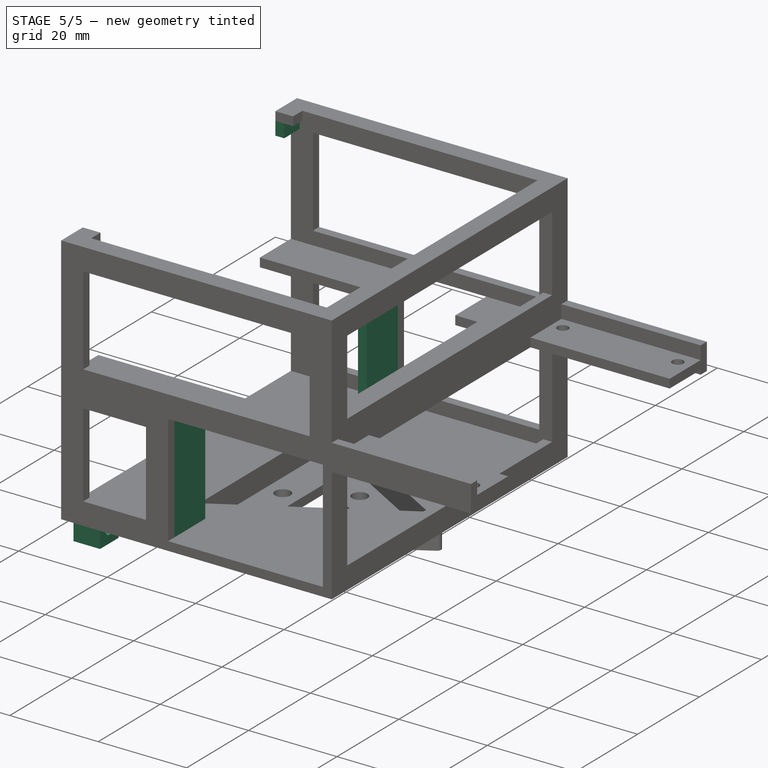
[diagram: stage 5 of 5 — iso view after this stage's code; geometry added in this stage tinted green]
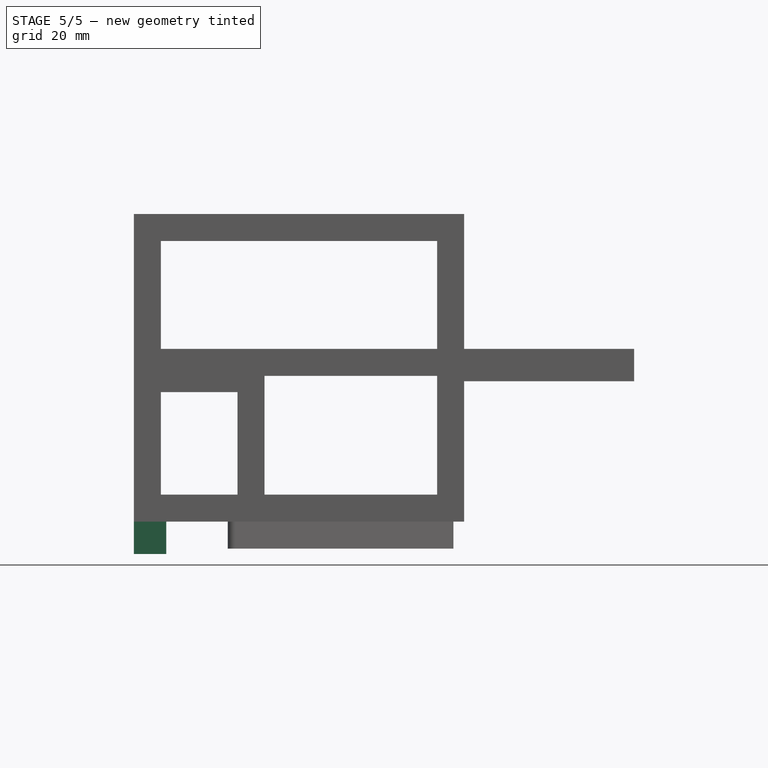
[diagram: stage 5 of 5 — front view after this stage's code; geometry added in this stage tinted green]
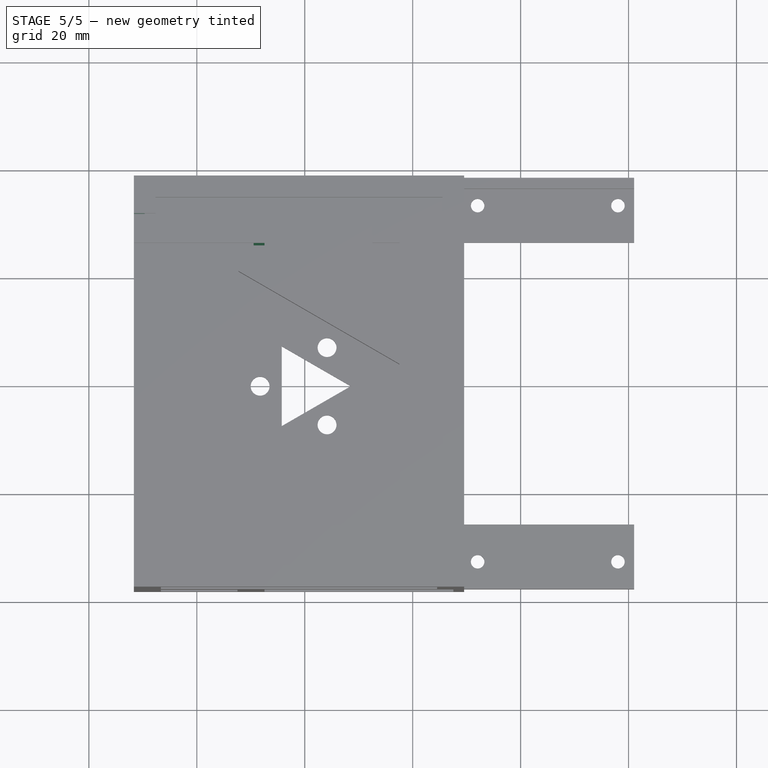
[diagram: stage 5 of 5 — top view after this stage's code; geometry added in this stage tinted green]
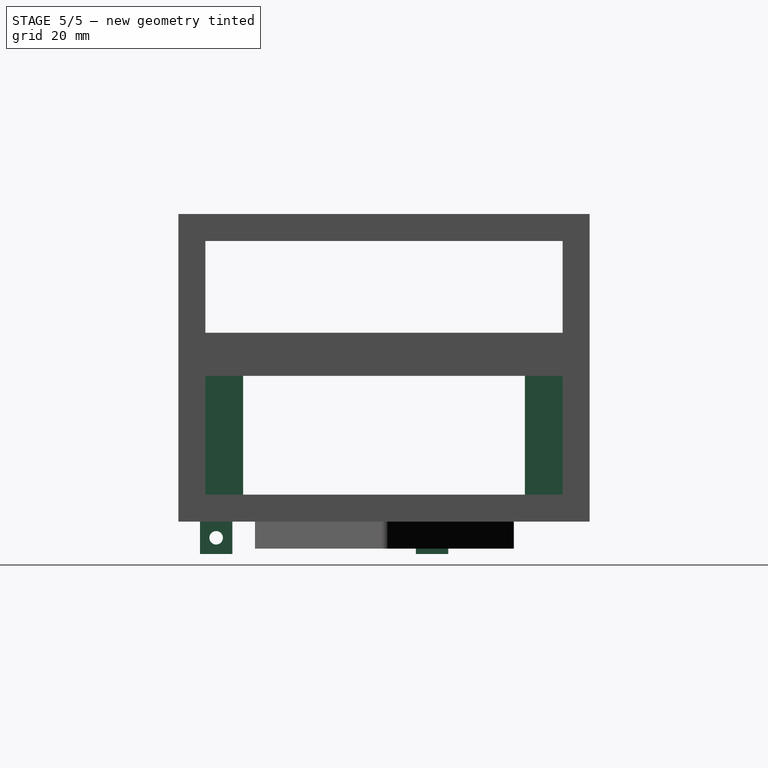
[diagram: stage 5 of 5 — right view after this stage's code; geometry added in this stage tinted green]
FEATURE [Sketcher::SketchObject] Sketch010
  ExternalGeometry = -> [Pad006]
  FullyConstrained = true
  MapMode = 5
  Placement = pos=(-31.6626,0,0) rot=(0.57735,-0.57735,-0.57735;2.0944rad)
  Support = -> [Pad006]
  sketch-geometry (8):
    g0: LineSegment StartX=-31.01 StartY=60 StartZ=0 EndX=-36.01 EndY=60 EndZ=0
    g1: LineSegment StartX=-36.01 StartY=60 StartZ=0 EndX=-36.01 EndY=57 EndZ=0
    g2: LineSegment StartX=-36.01 StartY=57 StartZ=0 EndX=-31.01 EndY=57 EndZ=0
    g3: LineSegment StartX=-31.01 StartY=57 StartZ=0 EndX=-31.01 EndY=60 EndZ=0
    g4: LineSegment StartX=31.19 StartY=60 StartZ=0 EndX=36.19 EndY=60 EndZ=0
    g5: LineSegment StartX=36.19 StartY=60 StartZ=0 EndX=36.19 EndY=57 EndZ=0
    g6: LineSegment StartX=36.19 StartY=57 StartZ=0 EndX=31.19 EndY=57 EndZ=0
    g7: LineSegment StartX=31.19 StartY=57 StartZ=0 EndX=31.19 EndY=60 EndZ=0
  constraints (22):
    c: Coincident(g0,g1)
    c: Coincident(g1,g2)
    c: Coincident(g2,g3)
    c: Coincident(g3,g0)
    c: Horizontal(g0)
    c: Horizontal(g2)
    c: Vertical(g1)
    c: Vertical(g3)
    c: Coincident(g0,g-3)
    c: PointOnObject(g1,g-4)
    c: Coincident(g4,g5)
    c: Coincident(g5,g6)
    c: Coincident(g6,g7)
    c: Coincident(g7,g4)
    c: Horizontal(g4)
    c: Horizontal(g6)
    c: Vertical(g5)
    c: Vertical(g7)
    c: Coincident(g4,g-5)
    c: PointOnObject(g5,g-6)
    c: PointOnObject(g-7,g2)
    c: PointOnObject(g-7,g6)
FEATURE [PartDesign::Pad] Pad007
  BaseFeature = -> Pad006
  Direction = (-1,0,0)
  Length = 2
  Length2 = 10
  Profile = -> Sketch010
  ReferenceAxis = -> Sketch010 [N_Axis]
  Reversed = true
  Type = 0
FEATURE [Sketcher::SketchObject] Sketch011
  ExternalGeometry = -> [Pad007]
  FullyConstrained = true
  MapMode = 5
  Placement = pos=(-31.6626,0,0) rot=(0.57735,-0.57735,-0.57735;2.0944rad)
  Support = -> [Pad007]
  sketch-geometry (11):
    g0: LineSegment StartX=28.19 StartY=5 StartZ=0 EndX=34.19 EndY=5 EndZ=0
    g1: LineSegment StartX=34.19 StartY=5 StartZ=0 EndX=34.19 EndY=-1 EndZ=0
    g2: LineSegment StartX=34.19 StartY=-1 StartZ=0 EndX=28.19 EndY=-1 EndZ=0
    g3: LineSegment StartX=28.19 StartY=-1 StartZ=0 EndX=28.19 EndY=5 EndZ=0
    g4: LineSegment StartX=-11.81 StartY=5 StartZ=0 EndX=-5.81 EndY=5 EndZ=0
    g5: LineSegment StartX=-5.81 StartY=5 StartZ=0 EndX=-5.81 EndY=-1 EndZ=0
    g6: LineSegment StartX=-5.81 StartY=-1 StartZ=0 EndX=-11.81 EndY=-1 EndZ=0
    g7: LineSegment StartX=-11.81 StartY=-1 StartZ=0 EndX=-11.81 EndY=5 EndZ=0
    g8: LineSegment StartX=-8.81 StartY=2 StartZ=0 EndX=31.19 EndY=2 EndZ=0
    g9: Circle CenterX=-8.81 CenterY=2 CenterZ=0 NormalX=0 NormalY=0 NormalZ=1 AngleXU=0 Radius=1.25
    g10: Circle CenterX=31.19 CenterY=2 CenterZ=0 NormalX=0 NormalY=0 NormalZ=1 AngleXU=0 Radius=1.25
  constraints (32):
    c: Coincident(g0,g1)
    c: Coincident(g1,g2)
    c: Coincident(g2,g3)
    c: Coincident(g3,g0)
    c: Horizontal(g0)
    c: Horizontal(g2)
    c: Vertical(g1)
    c: Vertical(g3)
    c: PointOnObject(g0,g-3)
    c: Distance(g3) = 6
    c: Distance(g2) = 6
    c: Distance(g-4,g1) = 4
    c: Coincident(g4,g5)
    c: Coincident(g5,g6)
    c: Coincident(g6,g7)
    c: Coincident(g7,g4)
    c: Horizontal(g4)
    c: Horizontal(g6)
    c: Vertical(g5)
    c: Vertical(g7)
    c: PointOnObject(g4,g-3)
    c: Equal(g3,g7)
    c: Equal(g7,g6)
    c: Horizontal(g8)
    c: Distance(g8,g0) = 3
    c: Distance(g8,g1) = 3
    c: Distance(g8) = 40
    c: Distance(g8,g7) = 3
    c: Coincident(g9,g8)
    c: Coincident(g10,g8)
    c: Diameter(g10) = 2.5
    c: Diameter(g9) = 2.5
FEATURE [PartDesign::Pad] Pad008
  BaseFeature = -> Pad007
  Direction = (-1,0,0)
  Length = 6
  Length2 = 10
  Profile = -> Sketch011
  ReferenceAxis = -> Sketch011 [N_Axis]
  Reversed = true
  Type = 0
FEATURE [Sketcher::SketchObject] Sketch012
  ExternalGeometry = -> [Pad008]
  FullyConstrained = true
  MapMode = 5
  Placement = pos=(0,7e-15,32) rot=(1,0,0;3.14159rad)
  Support = -> [Pad008]
  sketch-geometry (8):
    g0: LineSegment StartX=-7.46261 StartY=36.19 StartZ=0 EndX=-9.46261 EndY=36.19 EndZ=0
    g1: LineSegment StartX=-9.46261 StartY=36.19 StartZ=0 EndX=-9.46261 EndY=26.19 EndZ=0
    g2: LineSegment StartX=-9.46261 StartY=26.19 StartZ=0 EndX=-7.46261 EndY=26.19 EndZ=0
    g3: LineSegment StartX=-7.46261 StartY=26.19 StartZ=0 EndX=-7.46261 EndY=36.19 EndZ=0
    g4: LineSegment StartX=-7.46261 StartY=-26.01 StartZ=0 EndX=-9.46261 EndY=-26.01 EndZ=0
    g5: LineSegment StartX=-9.46261 StartY=-26.01 StartZ=0 EndX=-9.46261 EndY=-36.01 EndZ=0
    g6: LineSegment StartX=-9.46261 StartY=-36.01 StartZ=0 EndX=-7.46261 EndY=-36.01 EndZ=0
    g7: LineSegment StartX=-7.46261 StartY=-36.01 StartZ=0 EndX=-7.46261 EndY=-26.01 EndZ=0
  constraints (22):
    c: Coincident(g0,g1)
    c: Coincident(g1,g2)
    c: Coincident(g2,g3)
    c: Coincident(g3,g0)
    c: Horizontal(g0)
    c: Horizontal(g2)
    c: Vertical(g1)
    c: Vertical(g3)
    c: Coincident(g0,g-3)
    c: PointOnObject(g1,g-5)
    c: Coincident(g4,g5)
    c: Coincident(g5,g6)
    c: Coincident(g6,g7)
    c: Coincident(g7,g4)
    c: Horizontal(g4)
    c: Horizontal(g6)
    c: Vertical(g5)
    c: Vertical(g7)
    c: Coincident(g4,g-6)
    c: PointOnObject(g5,g-4)
    c: Distance(g2) = 2
    c: Distance(g4) = 2
FEATURE [PartDesign::Pad] Pad009
  BaseFeature = -> Pad008
  Direction = (0,-2e-16,-1)
  Length = 25
  Length2 = 10
  Profile = -> Sketch012
  ReferenceAxis = -> Sketch012 [N_Axis]
  Type = 0
FEATURE [PartDesign::Body] Body
  Group = -> [Sketch,Pad,Fillet,Fillet001,Fillet002,Sketch001,Pad001,Sketch002,Pad002,Sketch003,Pad003,Sketch004,Pocket,Sketch005,Pocket001,Sketch006,Pocket002,Sketch007,Pad004,Sketch008,Pad005,Sketch009,Pad006,Sketch010,Pad007,Sketch011,Pad008,Sketch012,Pad009]
  Origin = -> Origin
  Tip = -> Pad009
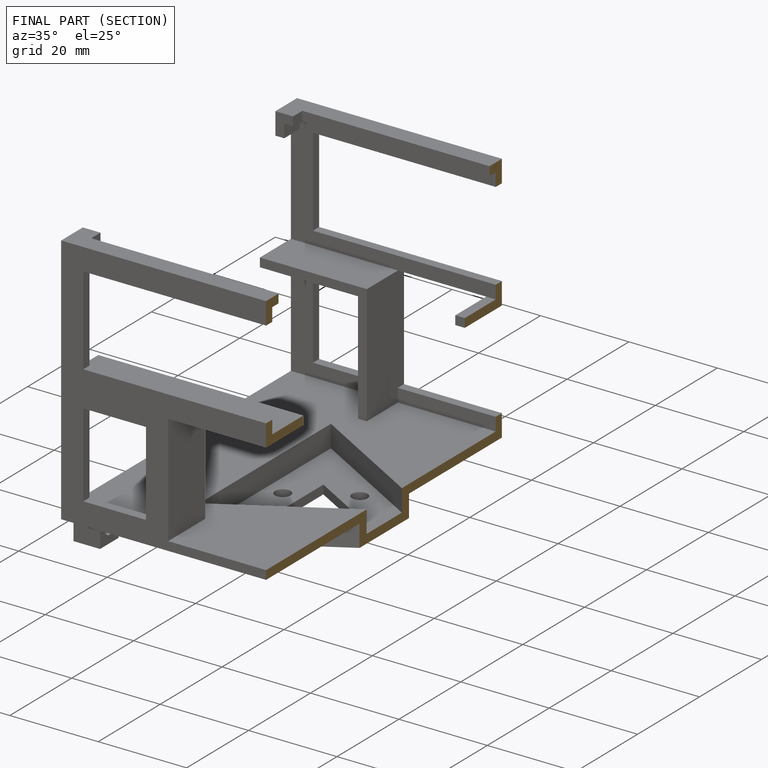
[diagram: finished part — half-section view (interior)]
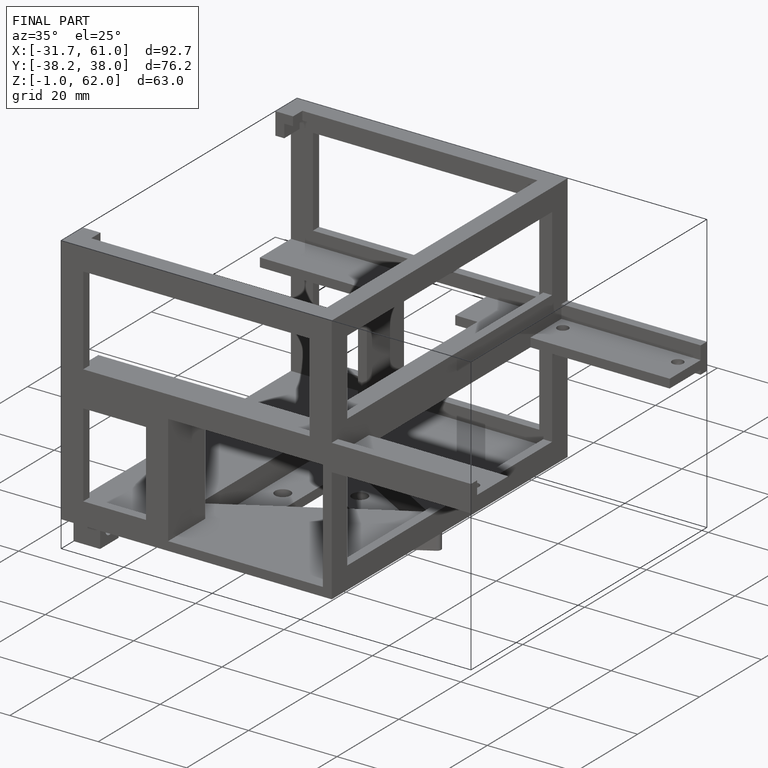
[diagram: finished part — iso view with bounding-box wireframe]
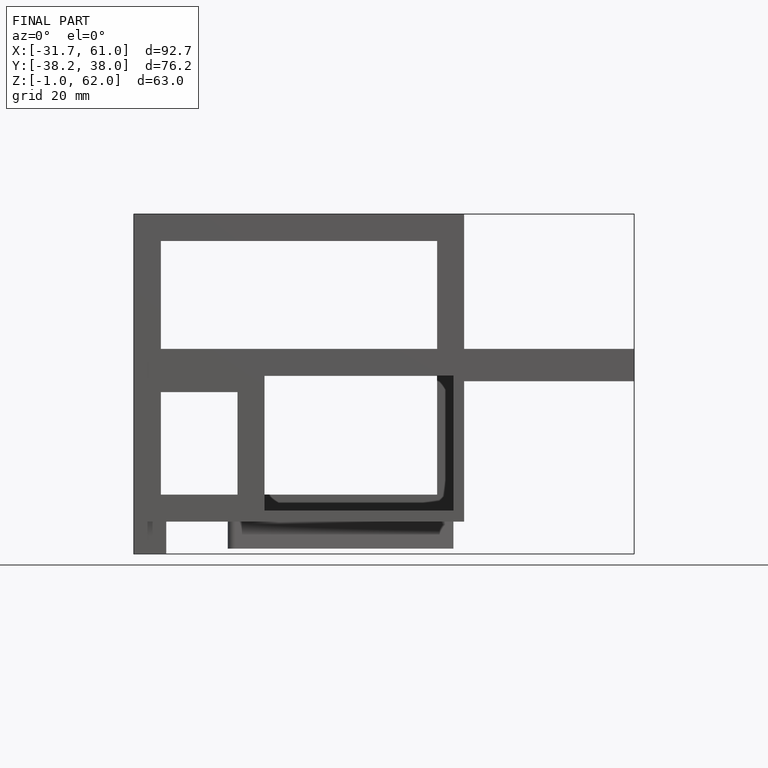
[diagram: finished part — front view with bounding-box wireframe]
